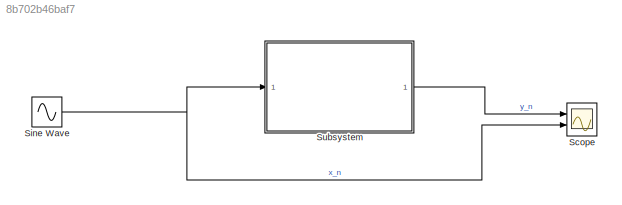
MODEL slx_8b702b46baf7
KIND model
CONFIG AbsTol = auto
CONFIG EnableMultiTasking = off
CONFIG FixedStep = auto
CONFIG MaxStep = auto
CONFIG MinStep = auto
CONFIG RelTol = 1e-3
CONFIG SampleTimeConstraint = Unconstrained
CONFIG SolverName = VariableStepAuto
CONFIG StartTime = 0.0
CONFIG StopTime = 50
WORKSPACE source: mxarray member
WORKSPACE a1 = 0.01584
WORKSPACE b0 = 0.5792
WORKSPACE b1 = -0.5792
BLOCK [Scope] Scope
  Floating = off
  NumInputPorts = 2
  Ports = [2]
  ScopeSpecificationString = Simulink.scopes.TimeScopeBlockCfg('CurrentConfiguration', extmgr.ConfigurationSet(extmgr.Configuration('Core','General UI',true),extmgr.Configuration('Core','Source UI',true),extmgr.Configuration('Sources','WiredSimulink',true),extmgr.Configuration('Visuals','Time Domain',true,'SerializedDisplays',{struct('MinYLimReal','-0.0922','MaxYLimReal','0.0922','YLabelReal','','MinYLimMag','0.00000','MaxYLi...<+2034ch>
BLOCK [Sin] Sine Wave
  Frequency = 2*pi*100
  Ports = [0, 1]
  SampleTime = 1/5000
  Samples = 5000
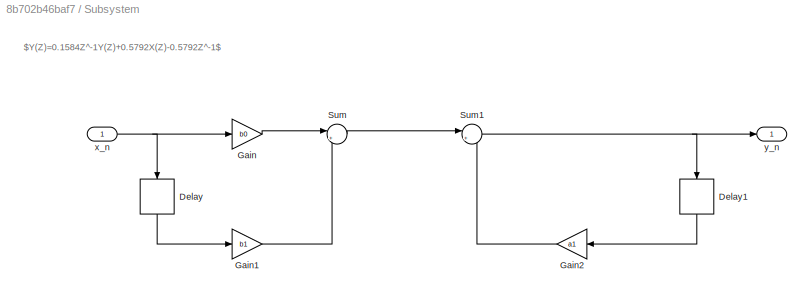
BLOCK [SubSystem] Subsystem
  Ports = [1, 1]
  RequestExecContextInheritance = off
BLOCK [Delay] Subsystem/Delay
  DelayLength = 1
  InputPortMap = u0
  NameLocation = left
  Ports = [1, 1]
BLOCK [Delay] Subsystem/Delay1
  DelayLength = 1
  InputPortMap = u0
  NameLocation = left
  Ports = [1, 1]
BLOCK [Gain] Subsystem/Gain
  Gain = b0
BLOCK [Gain] Subsystem/Gain1
  Gain = b1
BLOCK [Gain] Subsystem/Gain2
  Gain = a1
BLOCK [Sum] Subsystem/Sum
  Inputs = |++
  Ports = [2, 1]
BLOCK [Sum] Subsystem/Sum1
  Inputs = |++
  Ports = [2, 1]
BLOCK [Inport] Subsystem/x_n
BLOCK [Outport] Subsystem/y_n
ANNOTATION Subsystem: $Y(Z)=0.1584Z^-1Y(Z)+0.5792X(Z)-0.5792Z^-1$
NET Sine Wave:1 -> Scope:2, Subsystem:1
LINE Subsystem/Delay1:1 -> Subsystem/Gain2:1
LINE Subsystem/Delay:1 -> Subsystem/Gain1:1
LINE Subsystem/Gain1:1 -> Subsystem/Sum:2
LINE Subsystem/Gain2:1 -> Subsystem/Sum1:2
LINE Subsystem/Gain:1 -> Subsystem/Sum:1
NET Subsystem/Sum1:1 -> Subsystem/Delay1:1, Subsystem/y_n:1
LINE Subsystem/Sum:1 -> Subsystem/Sum1:1
NET Subsystem/x_n:1 -> Subsystem/Delay:1, Subsystem/Gain:1
LINE Subsystem:1 -> Scope:1
note: NET lines group one-source signal fan-out (src -> all destinations, sorted); 1:1 wires keep LINE
